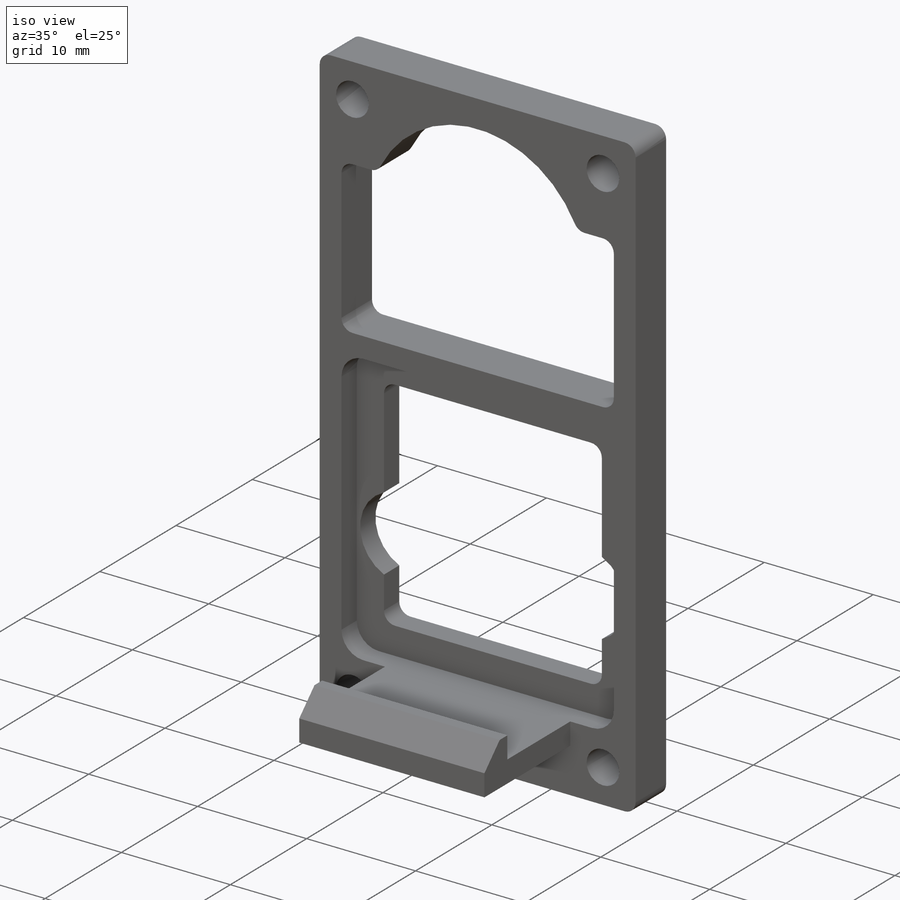
[diagram: iso view]
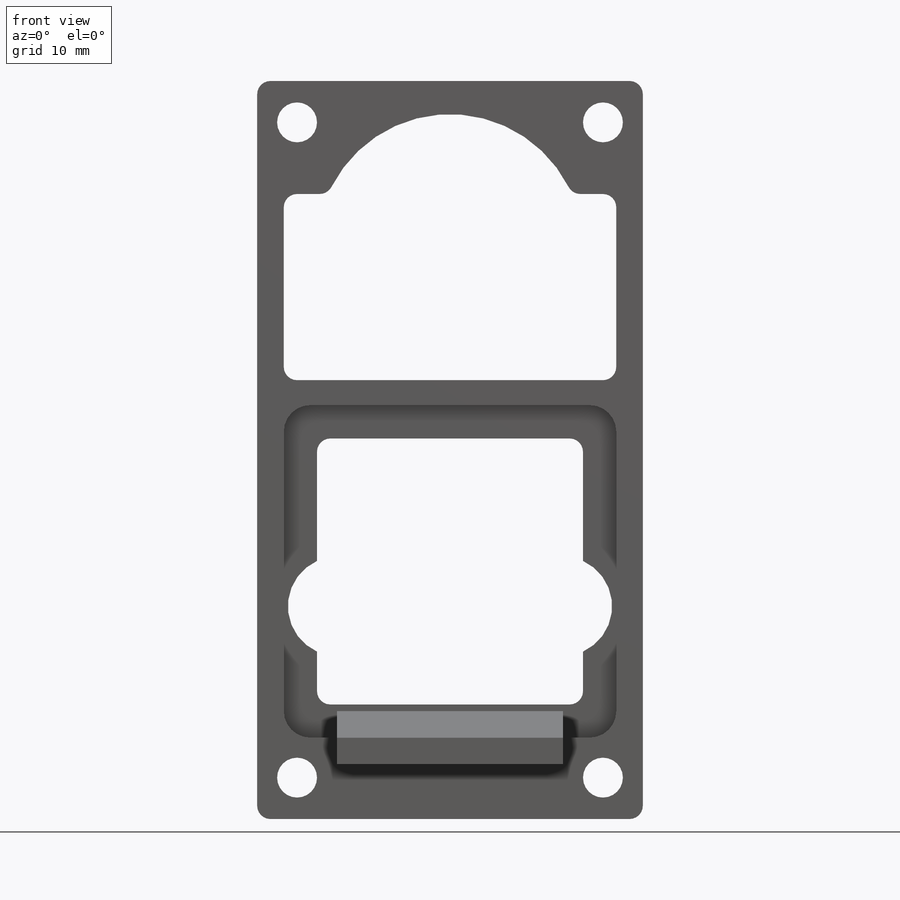
[diagram: front view]
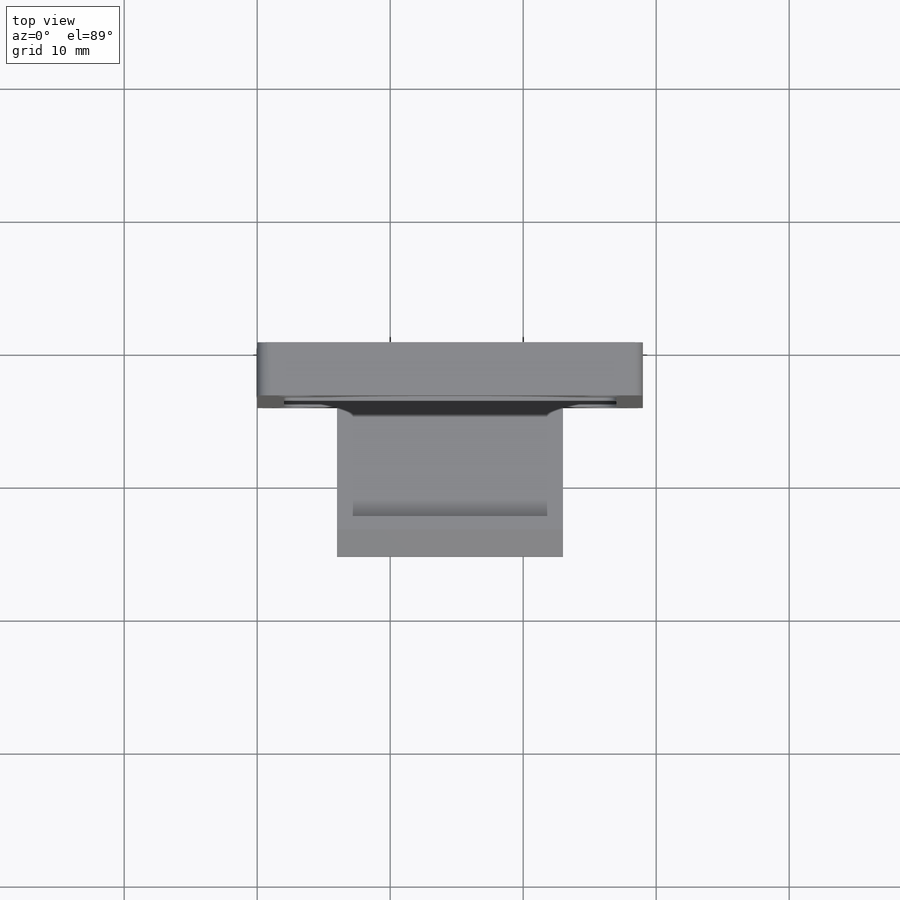
[diagram: top view]
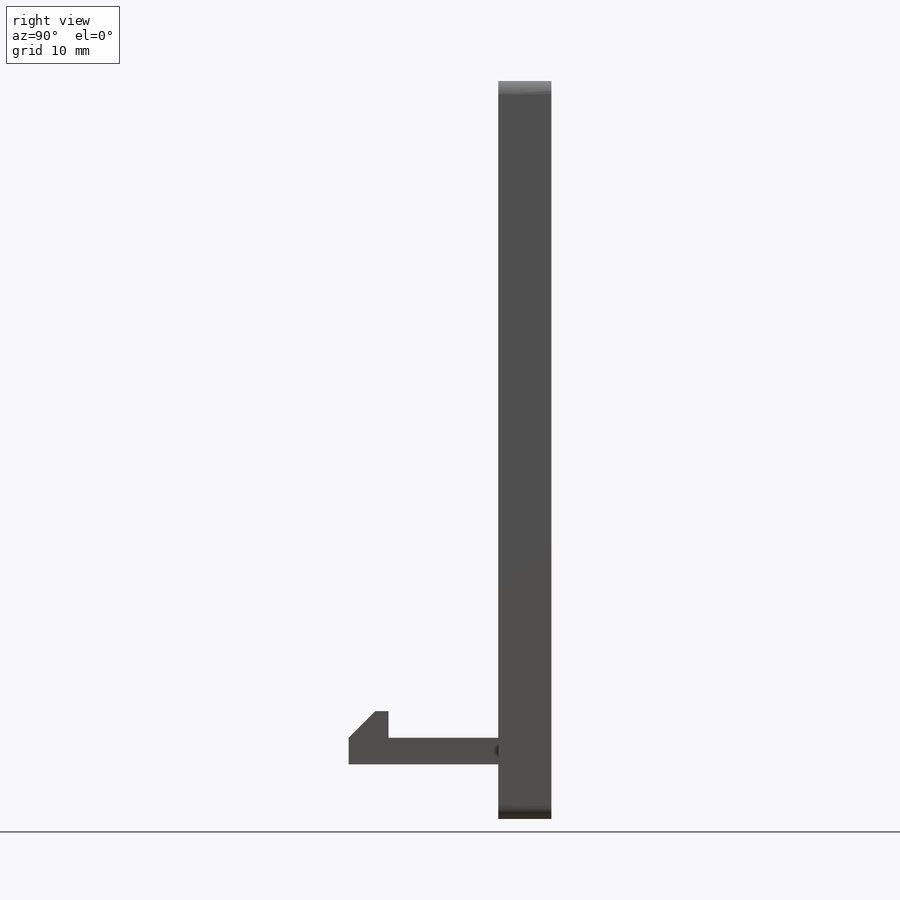
[diagram: right view]
SOLIDWORKS PART (.sldprt)
format: sldprt  version: not decoded by parser v0  size: 344,064 bytes
history: native  units: mm
features: sketch x6, extrude x3, cut_extrude x3, fillet x2, material x1 (+12 scaffold rows collapsed)
feature tree (27):
  scaffold x12  (default folders/planes/origin — collapsed)
  material  "ABS"
  sketch  "Sketch1"  dims[c1.D1=~55.828195mm c1.D2=~32.984323mm c2.D1=55.5mm c2.D2=29.0mm]
  extrude  "Body"  Depth=4mm
  sketch  "Sketch2"  dims[c1.D1=3.0mm c1.D2=3.0mm c1.D3=3.0mm c1.D4=3.0mm c2.D1=~72.068791mm c2.D2=11.5mm c2.D3=24.635mm]
  cut_extrude  "Bolt Holes"  [1 undecoded]
  sketch  "Sketch3"  dims[c1.D1=20.0mm c1.D2=20.0mm c1.D3=7.5mm c1.D4=7.5mm c1.D5=7.5mm c1.D8=~3.706404mm c1.D12=10.0mm c2.D1=~9.470805mm c2.D2=12.5mm c2.D4=16.0mm c2.D5=8.44mm c2.D6=~18.626265mm c2.D7=~25.546152mm c3.D6=~15.21289mm c3.D7=~19.65791mm c4.D6=25.0mm c4.D7=20.0mm c4.D8=25.0mm c5.D6=5.5mm c5.D8=20.0mm c5.D9=~11.529084mm c5.D10=~25.178941mm c6.D9=4.0mm c6.D10=2.0mm c6.D11=25.0mm]
  cut_extrude  "Servo Clearance"  [1 undecoded]
  sketch  "Sketch4"  dims[c1.D1=~24.08845mm c1.D2=~25.616055mm c2.D1=25.0mm c2.D2=3.0mm]
  cut_extrude  "Fan Recess"  Depth=2mm
  sketch  "Sketch5"  dims[c1.D1=~1.872308mm c1.D2=~14.263686mm c2.D1=2.0mm c2.D2=25.0mm c3.D1=~2.688738mm c3.D2=~15.695504mm c4.D1=2.0mm c4.D2=1.0mm]
  fillet  "Clamp Fillets"  Radius=1mm
  fillet  "Fan Fillets"  Radius=2mm
  extrude  "Clamp Base"  Depth=10.25mm
  sketch  "Sketch7"  dims[D1=3.0mm D2=2.0mm D3=1.0mm D4=4.0mm]
  extrude  "Clamp Hook"  [1 undecoded]
decode coverage: 11 of 14 modeling features carry decoded parameters
note: ~ marks probable driven/reference dimensions
note: 3 parameter values undecoded
summary: no parameter record found for 3 features
note: suppression state not decoded; provenance and decode notes live in map.json
